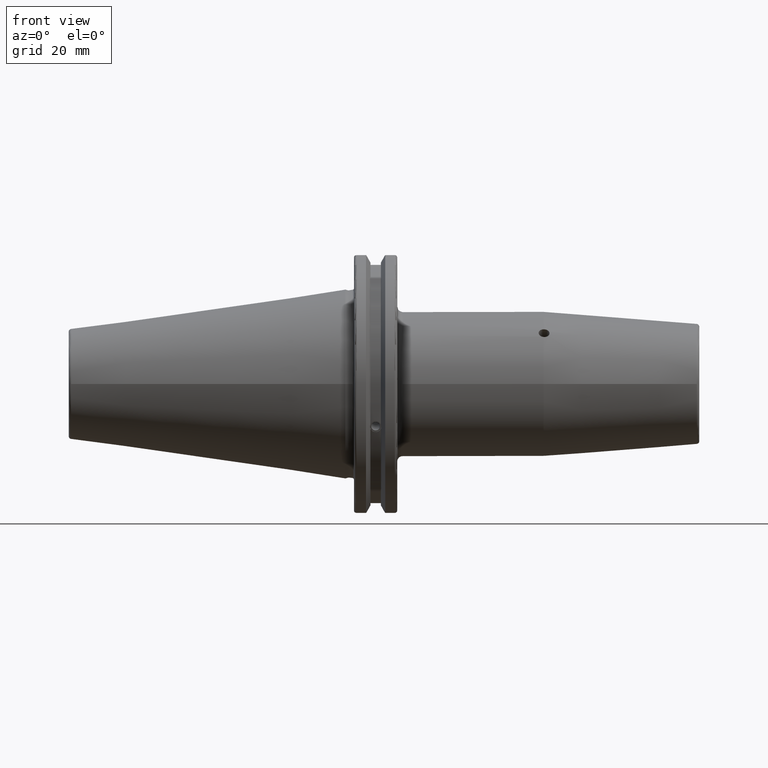
[diagram: clean part render]
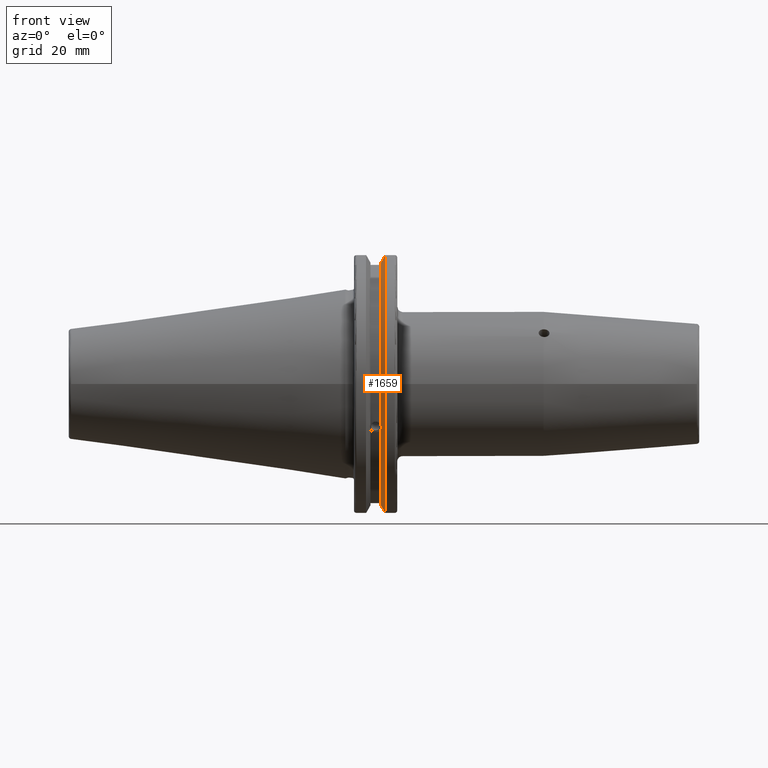
[diagram: same view with one face highlighted and labeled with its STEP entity id]
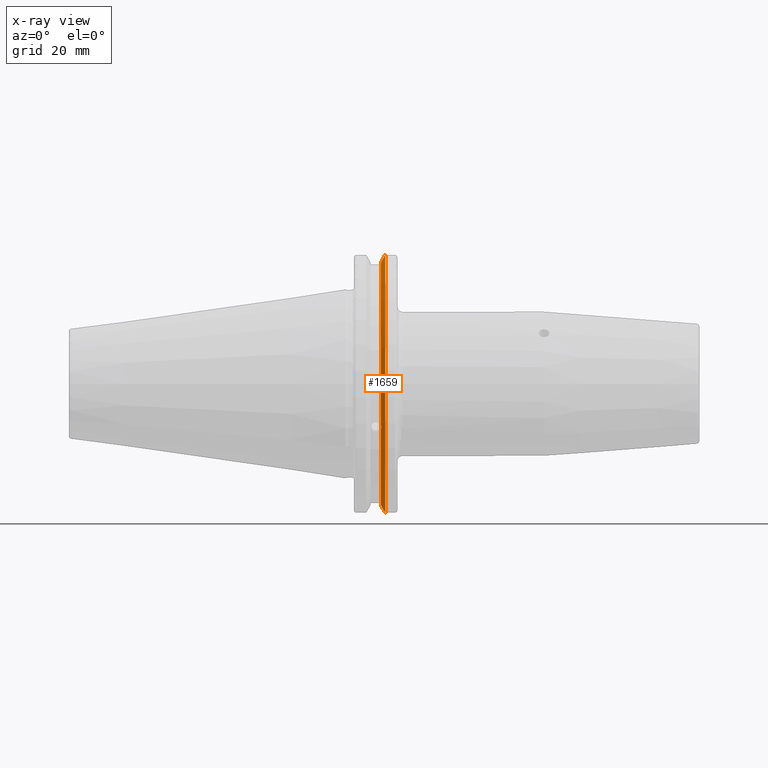
[diagram: x-ray of the same camera — body ghosted, the highlighted face saturated]
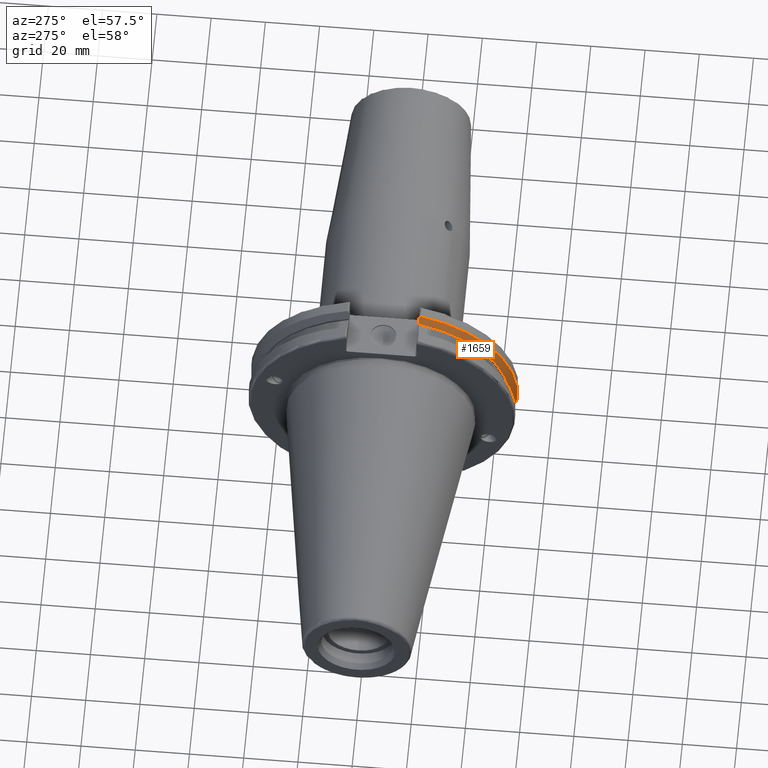
[diagram: same view with one face highlighted and labeled with its STEP entity id]
A machine part, front view. The second image highlights one B-rep face of the part: STEP entity #1659.
The next image is the same camera in x-ray: the body ghosted, the highlighted face saturated — about 0% of this face is hidden behind the body in this view.
A second angle (auxiliary view) of the same face is appended — the face is thin or edge-on in the first view.
In plain terms, the highlighted conical surface has half-angle 60 deg.
Its self-contained STEP definition (entity closure, byte-faithful):
#15=(
BOUNDED_CURVE()
B_SPLINE_CURVE(2,(#2994,#2995,#2996),.UNSPECIFIED.,.F.,.F.)
B_SPLINE_CURVE_WITH_KNOTS((3,3),(0.,0.275823910673374),.UNSPECIFIED.)
CURVE()
GEOMETRIC_REPRESENTATION_ITEM()
RATIONAL_B_SPLINE_CURVE((1.,1.00038235574978,1.00012873636953))
REPRESENTATION_ITEM('')
);
#16=(
BOUNDED_CURVE()
B_SPLINE_CURVE(2,(#2998,#2999,#3000),.UNSPECIFIED.,.F.,.F.)
B_SPLINE_CURVE_WITH_KNOTS((3,3),(0.,0.0648240472896156),.UNSPECIFIED.)
CURVE()
GEOMETRIC_REPRESENTATION_ITEM()
RATIONAL_B_SPLINE_CURVE((1.,1.00011477674884,1.00019140646027))
REPRESENTATION_ITEM('')
);
#17=(
BOUNDED_CURVE()
B_SPLINE_CURVE(2,(#3004,#3005,#3006),.UNSPECIFIED.,.F.,.F.)
B_SPLINE_CURVE_WITH_KNOTS((3,3),(0.325260944932494,0.3900849922222),
 .UNSPECIFIED.)
CURVE()
GEOMETRIC_REPRESENTATION_ITEM()
RATIONAL_B_SPLINE_CURVE((1.00019140645961,1.00011477674844,1.))
REPRESENTATION_ITEM('')
);
#18=(
BOUNDED_CURVE()
B_SPLINE_CURVE(2,(#3008,#3009,#3010),.UNSPECIFIED.,.F.,.F.)
B_SPLINE_CURVE_WITH_KNOTS((3,3),(0.0558332664531015,0.331657177124503),
 .UNSPECIFIED.)
CURVE()
GEOMETRIC_REPRESENTATION_ITEM()
RATIONAL_B_SPLINE_CURVE((1.00012873636668,1.00038235574129,1.))
REPRESENTATION_ITEM('')
);
#106=CONICAL_SURFACE('',#1810,47.8172386482472,1.0471975511966);
#148=CIRCLE('',#1811,46.4219772964944);
#149=CIRCLE('',#1812,49.2125);
#150=CIRCLE('',#1813,46.4219772964944);
#225=FACE_OUTER_BOUND('',#332,.T.);
#332=EDGE_LOOP('',(#1263,#1264,#1265,#1266,#1267,#1268,#1269,#1270,#1271));
#429=B_SPLINE_CURVE_WITH_KNOTS('',3,(#2903,#2904,#2905,#2906,#2907,#2908,
#2909,#2910),.UNSPECIFIED.,.F.,.F.,(4,2,2,4),(0.42671286835872,0.441644498666905,
0.480313313223129,0.518982127779353),.UNSPECIFIED.);
#433=B_SPLINE_CURVE_WITH_KNOTS('',3,(#2965,#2966,#2967,#2968,#2969,#2970,
#2971,#2972),.UNSPECIFIED.,.F.,.F.,(4,2,2,4),(0.518982127779353,0.557650942335576,
0.5963197568918,0.611251387199985),.UNSPECIFIED.);
#726=VERTEX_POINT('',#2900);
#727=VERTEX_POINT('',#2902);
#734=VERTEX_POINT('',#2963);
#740=VERTEX_POINT('',#2991);
#741=VERTEX_POINT('',#2993);
#742=VERTEX_POINT('',#2997);
#743=VERTEX_POINT('',#3001);
#744=VERTEX_POINT('',#3003);
#745=VERTEX_POINT('',#3007);
#919=EDGE_CURVE('',#727,#726,#429,.T.);
#927=EDGE_CURVE('',#726,#734,#433,.T.);
#935=EDGE_CURVE('',#734,#740,#148,.T.);
#936=EDGE_CURVE('',#740,#741,#15,.T.);
#937=EDGE_CURVE('',#742,#741,#16,.T.);
#938=EDGE_CURVE('',#743,#742,#149,.T.);
#939=EDGE_CURVE('',#744,#743,#17,.T.);
#940=EDGE_CURVE('',#744,#745,#18,.T.);
#941=EDGE_CURVE('',#745,#727,#150,.T.);
#1263=ORIENTED_EDGE('',*,*,#919,.T.);
#1264=ORIENTED_EDGE('',*,*,#927,.T.);
#1265=ORIENTED_EDGE('',*,*,#935,.T.);
#1266=ORIENTED_EDGE('',*,*,#936,.T.);
#1267=ORIENTED_EDGE('',*,*,#937,.F.);
#1268=ORIENTED_EDGE('',*,*,#938,.F.);
#1269=ORIENTED_EDGE('',*,*,#939,.F.);
#1270=ORIENTED_EDGE('',*,*,#940,.T.);
#1271=ORIENTED_EDGE('',*,*,#941,.T.);
#1659=ADVANCED_FACE('',(#225),#106,.T.);
#1810=AXIS2_PLACEMENT_3D('',#2990,#2089,#2090);
#1811=AXIS2_PLACEMENT_3D('',#2992,#2091,#2092);
#1812=AXIS2_PLACEMENT_3D('',#3002,#2093,#2094);
#1813=AXIS2_PLACEMENT_3D('',#3011,#2095,#2096);
#2089=DIRECTION('center_axis',(1.,0.,0.));
#2090=DIRECTION('ref_axis',(0.,-1.,-1.22464679914735E-16));
#2091=DIRECTION('center_axis',(1.,0.,0.));
#2092=DIRECTION('ref_axis',(0.,0.,-1.));
#2093=DIRECTION('center_axis',(1.,0.,0.));
#2094=DIRECTION('ref_axis',(0.,0.,-1.));
#2095=DIRECTION('center_axis',(1.,0.,0.));
#2096=DIRECTION('ref_axis',(0.,0.,-1.));
#2900=CARTESIAN_POINT('',(13.2341,-43.923494649906,-15.9868446375166));
#2902=CARTESIAN_POINT('',(13.0491,-43.9096390749305,-15.0646464421033));
#2903=CARTESIAN_POINT('Ctrl Pts',(13.0491,-43.9096390749305,-15.0646464421033));
#2904=CARTESIAN_POINT('Ctrl Pts',(13.0660815609661,-43.9250360001461,-15.1104047527575));
#2905=CARTESIAN_POINT('Ctrl Pts',(13.0821132459668,-43.9385582852181,-15.1564111356409));
#2906=CARTESIAN_POINT('Ctrl Pts',(13.1358132615496,-43.9797830409459,-15.3217566390708));
#2907=CARTESIAN_POINT('Ctrl Pts',(13.1719838933644,-43.9989016655819,-15.4570249042868));
#2908=CARTESIAN_POINT('Ctrl Pts',(13.2212913174802,-43.9931221605126,-15.7289849146254));
#2909=CARTESIAN_POINT('Ctrl Pts',(13.2341,-43.9675796948952,-15.8657219718732));
#2910=CARTESIAN_POINT('Ctrl Pts',(13.2341,-43.923494649906,-15.9868446375166));
#2963=CARTESIAN_POINT('',(13.0491,-43.3201030900029,-16.6843832486479));
#2965=CARTESIAN_POINT('Ctrl Pts',(13.2341,-43.923494649906,-15.9868446375166));
#2966=CARTESIAN_POINT('Ctrl Pts',(13.2341,-43.8794096049169,-16.10796730316));
#2967=CARTESIAN_POINT('Ctrl Pts',(13.2212913174802,-43.8110833825827,-16.2291323464527));
#2968=CARTESIAN_POINT('Ctrl Pts',(13.1719838933644,-43.6406982153492,-16.441180795372));
#2969=CARTESIAN_POINT('Ctrl Pts',(13.1358132615496,-43.5391037343221,-16.5325130832406));
#2970=CARTESIAN_POINT('Ctrl Pts',(13.0821132459668,-43.4012416983557,-16.6326763251437));
#2971=CARTESIAN_POINT('Ctrl Pts',(13.0660815609661,-43.3613106941341,-16.6592273018006));
#2972=CARTESIAN_POINT('Ctrl Pts',(13.0491,-43.3201030900029,-16.6843832486479));
#2990=CARTESIAN_POINT('Origin',(13.8546545170244,0.,0.));
#2991=CARTESIAN_POINT('',(13.0491,-12.95,-44.5791147973604));
#2992=CARTESIAN_POINT('Origin',(13.0491,0.,0.));
#2993=CARTESIAN_POINT('',(14.3818103943757,-12.95,-46.9780755322917));
#2994=CARTESIAN_POINT('Ctrl Pts',(13.0491,-12.95,-44.5791147973604));
#2995=CARTESIAN_POINT('Ctrl Pts',(13.697995509466,-12.95,-45.749496680259));
#2996=CARTESIAN_POINT('Ctrl Pts',(14.3818103943757,-12.95,-46.9780755322917));
#2997=CARTESIAN_POINT('',(14.6602090340487,-13.4317035994433,-47.3440544806494));
#2998=CARTESIAN_POINT('Ctrl Pts',(14.6602090340487,-13.4317035994433,-47.3440544806494));
#2999=CARTESIAN_POINT('Ctrl Pts',(14.5199310333617,-13.1896660169964,-47.1601640966263));
#3000=CARTESIAN_POINT('Ctrl Pts',(14.3818103943757,-12.95,-46.9780755322917));
#3001=CARTESIAN_POINT('',(14.6602090340487,-13.4317035994433,47.3440544806494));
#3002=CARTESIAN_POINT('Origin',(14.6602090340487,0.,0.));
#3003=CARTESIAN_POINT('',(14.3818103943757,-12.95,46.9780755322918));
#3004=CARTESIAN_POINT('Ctrl Pts',(14.3818103943757,-12.95,46.9780755322918));
#3005=CARTESIAN_POINT('Ctrl Pts',(14.5199310333617,-13.1896660169966,47.1601640966264));
#3006=CARTESIAN_POINT('Ctrl Pts',(14.6602090340487,-13.4317035994433,47.3440544806494));
#3007=CARTESIAN_POINT('',(13.0491,-12.95,44.5791147973604));
#3008=CARTESIAN_POINT('Ctrl Pts',(14.3818103943757,-12.95,46.9780755322918));
#3009=CARTESIAN_POINT('Ctrl Pts',(13.6979955094846,-12.95,45.7494966802924));
#3010=CARTESIAN_POINT('Ctrl Pts',(13.0491,-12.95,44.5791147973604));
#3011=CARTESIAN_POINT('Origin',(13.0491,0.,0.));